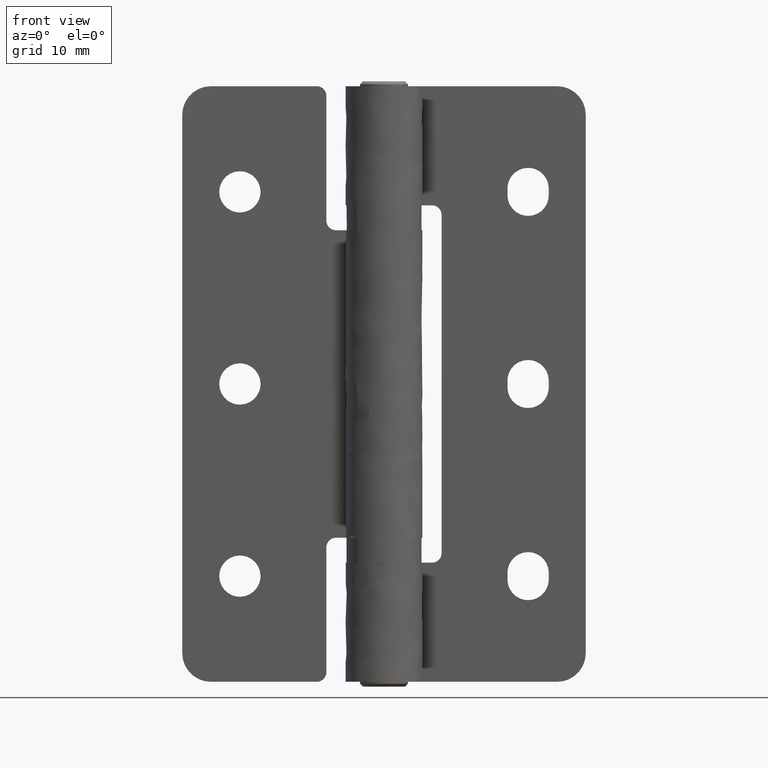
[diagram: clean part render]
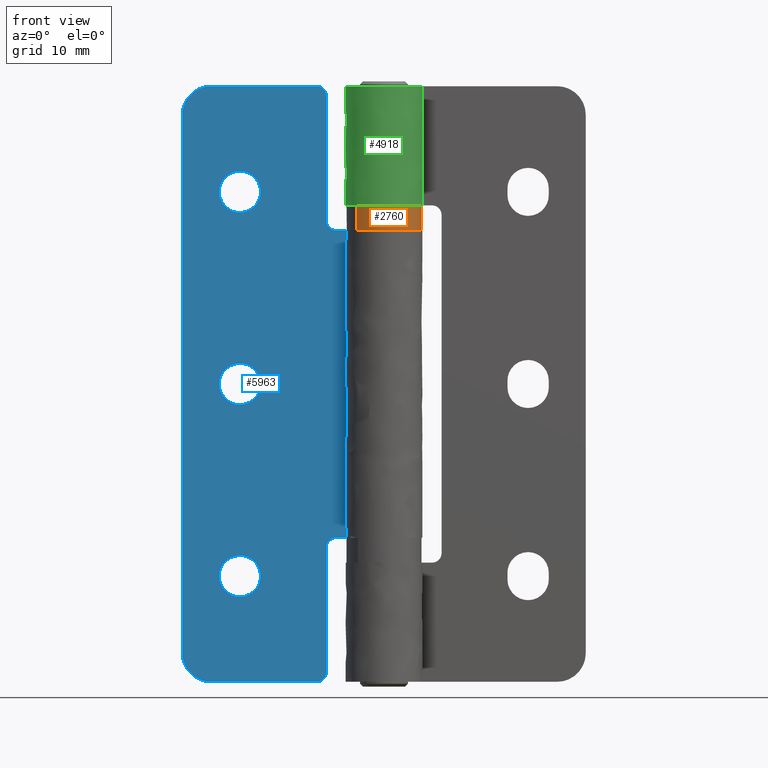
[diagram: same view with three faces highlighted in distinct colors, each labeled with its STEP entity id]
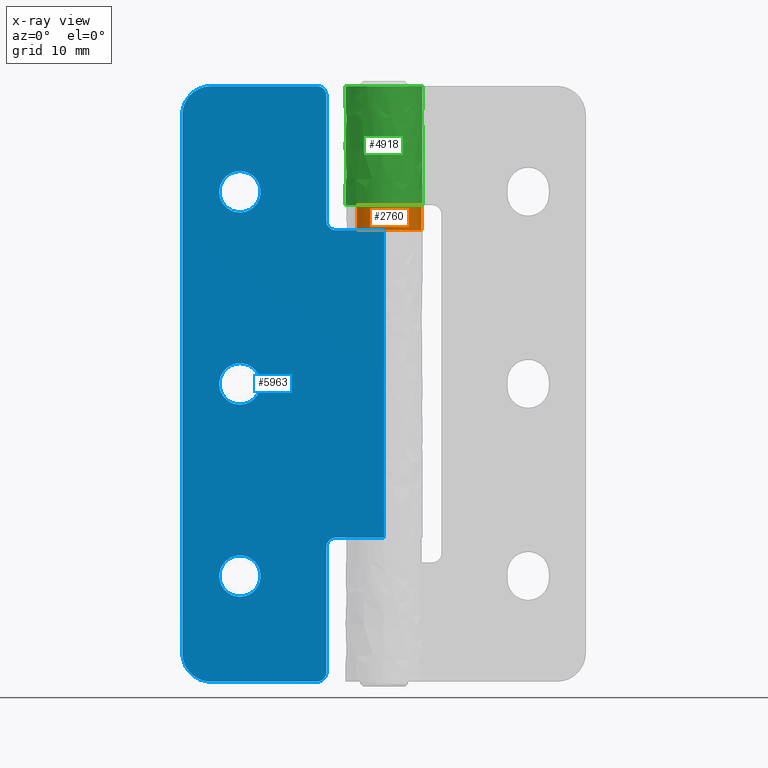
[diagram: x-ray of the same camera — body ghosted, the three highlighted faces saturated]
A machine part, front view with three faces highlighted in distinct colors.
The next image is the same camera in x-ray (body ghosted, the three faces saturated) — at least one of them is partly hidden behind the body in this view.
Their STEP definitions:

[orange] entity #2760 — the highlighted face is a freeform B-spline surface patch.
#2606=CARTESIAN_POINT('',(-2.822783572749665,-2.691076198279406,49.600000000000001));
#2607=VERTEX_POINT('',#2606);
#2617=CARTESIAN_POINT('',(0.000000922317437,-3.899999999999891,49.600000000000001));
#2618=VERTEX_POINT('',#2617);
#2619=CARTESIAN_POINT('',(-2.822783572749665,-2.691076198279406,49.600000000000001));
#2620=CARTESIAN_POINT('',(-2.528027617635878,-3.000641832290229,49.600000000000158));
#2621=CARTESIAN_POINT('',(-1.981877961203100,-3.410859152256643,49.599999999999881));
#2622=CARTESIAN_POINT('',(-1.002667200070252,-3.808434440283430,49.600000000000279));
#2623=CARTESIAN_POINT('',(-0.378101624264665,-3.900138674094396,49.600000000000001));
#2624=CARTESIAN_POINT('',(0.000000922317437,-3.899999999999891,49.600000000000001));
#2625=B_SPLINE_CURVE_WITH_KNOTS('',3,(#2619,#2620,#2621,#2622,#2623,#2624),.UNSPECIFIED.,.F.,.U.,(4,1,1,4),(0.000000021288519,1.282220543804275,2.021943365991340,3.156214729391200),.UNSPECIFIED.);
#2626=EDGE_CURVE('',#2607,#2618,#2625,.T.);
#2628=CARTESIAN_POINT('',(3.900000000000227,0.0,49.600000000000001));
#2629=VERTEX_POINT('',#2628);
#2630=CARTESIAN_POINT('',(0.000000922317437,-3.899999999999891,49.600000000000001));
#2631=CARTESIAN_POINT('',(0.414829419397993,-3.900256299974238,49.599999999999902));
#2632=CARTESIAN_POINT('',(1.004938852205711,-3.804903287229226,49.600000000000144));
#2633=CARTESIAN_POINT('',(1.789869726178876,-3.485357128299695,49.599999999999973));
#2634=CARTESIAN_POINT('',(2.294833548712168,-3.174221316555864,49.600000000000037));
#2635=CARTESIAN_POINT('',(2.766822754130544,-2.767041029386484,49.600000000000087));
#2636=CARTESIAN_POINT('',(3.187963559681291,-2.284905249159990,49.600000000000009));
#2637=CARTESIAN_POINT('',(3.555241060004578,-1.663520702287500,49.599999999999909));
#2638=CARTESIAN_POINT('',(3.831076216201784,-0.877402829397955,49.600000000000328));
#2639=CARTESIAN_POINT('',(3.900084752611212,-0.319073248142258,49.599999999999291));
#2640=CARTESIAN_POINT('',(3.900000000000227,0.0,49.600000000000001));
#2641=B_SPLINE_CURVE_WITH_KNOTS('',3,(#2630,#2631,#2632,#2633,#2634,#2635,#2636,#2637,#2638,#2639,#2640),.UNSPECIFIED.,.F.,.U.,(4,1,1,1,1,1,1,1,4),(0.000000074128069,1.244370384060238,1.770840953229247,2.536613876799416,3.015232974915307,3.637379492217823,4.451023522502679,5.168939530052215,6.126143593379990),.UNSPECIFIED.);
#2642=EDGE_CURVE('',#2618,#2629,#2641,.T.);
#2644=CARTESIAN_POINT('',(2.822783569893873,2.691076201275434,49.600000000000001));
#2645=VERTEX_POINT('',#2644);
#2646=CARTESIAN_POINT('',(3.900000000000227,0.0,49.600000000000001));
#2647=CARTESIAN_POINT('',(3.900019142518370,0.232024651732592,49.599999999999987));
#2648=CARTESIAN_POINT('',(3.854330530864289,0.742472062692377,49.600000000000023));
#2649=CARTESIAN_POINT('',(3.639631285481068,1.473913484165924,49.600000000000151));
#2650=CARTESIAN_POINT('',(3.282699157615003,2.146459023485178,49.599999999999632));
#2651=CARTESIAN_POINT('',(2.982899861808430,2.523152797378079,49.600000000000577));
#2652=CARTESIAN_POINT('',(2.822783569893873,2.691076201275434,49.600000000000001));
#2653=B_SPLINE_CURVE_WITH_KNOTS('',3,(#2646,#2647,#2648,#2649,#2650,#2651,#2652),.UNSPECIFIED.,.F.,.U.,(4,1,1,1,4),(0.000000018087805,0.696076791617354,1.531359101492440,2.273853462455018,2.969930235970900),.UNSPECIFIED.);
#2654=EDGE_CURVE('',#2629,#2645,#2653,.T.);
#2693=CARTESIAN_POINT('',(-2.822783751992231,-2.691076344046628,46.870130336548492));
#2694=CARTESIAN_POINT('',(-0.131707407945603,-5.513860096039086,46.870130336548499));
#2695=CARTESIAN_POINT('',(2.691076344046856,-2.822783751992458,46.870130336548492));
#2696=CARTESIAN_POINT('',(5.513860096039315,-0.131707407945830,46.870130336548499));
#2697=CARTESIAN_POINT('',(2.822783751992686,2.691076344046628,46.870130336548492));
#2698=CARTESIAN_POINT('',(-2.822783751992231,-2.691076344046628,49.729870332156032));
#2699=CARTESIAN_POINT('',(-0.131707407945603,-5.513860096039087,49.729870332156040));
#2700=CARTESIAN_POINT('',(2.691076344046856,-2.822783751992458,49.729870332156032));
#2701=CARTESIAN_POINT('',(5.513860096039315,-0.131707407945830,49.729870332156040));
#2702=CARTESIAN_POINT('',(2.822783751992686,2.691076344046628,49.729870332156032));
#2710=(BOUNDED_SURFACE()B_SPLINE_SURFACE(2,1,((#2693,#2698),(#2694,#2699),(#2695,#2700),(#2696,#2701),(#2697,#2702)),.UNSPECIFIED.,.F.,.F.,.U.)B_SPLINE_SURFACE_WITH_KNOTS((3,2,3),(2,2),(0.0,6.461731573020281,12.923463146040559),(0.0,2.859739995607541),.UNSPECIFIED.)GEOMETRIC_REPRESENTATION_ITEM()RATIONAL_B_SPLINE_SURFACE(((1.0,1.0),(0.707106781186548,0.707106781186548),(1.0,1.0),(0.707106781186548,0.707106781186548),(1.0,1.0)))REPRESENTATION_ITEM('')SURFACE());
#2711=ORIENTED_EDGE('',*,*,#2626,.F.);
#2712=CARTESIAN_POINT('',(-2.822783786781140,-2.691076307555071,46.999999999999957));
#2713=VERTEX_POINT('',#2712);
#2714=CARTESIAN_POINT('',(-2.822783786781140,-2.691076307555071,46.999999999999957));
#2715=CARTESIAN_POINT('',(-2.822783572749665,-2.691076198279406,49.600000000000001));
#2716=QUASI_UNIFORM_CURVE('',1,(#2714,#2715),.UNSPECIFIED.,.F.,.U.);
#2717=EDGE_CURVE('',#2713,#2607,#2716,.T.);
#2718=ORIENTED_EDGE('',*,*,#2717,.F.);
#2719=CARTESIAN_POINT('',(3.573348485771496,-1.562427790087011,47.0));
#2720=VERTEX_POINT('',#2719);
#2721=CARTESIAN_POINT('',(-2.822783786781140,-2.691076307555071,46.999999999999957));
#2722=CARTESIAN_POINT('',(-2.684886059892762,-2.835735976898761,46.999999999999922));
#2723=CARTESIAN_POINT('',(-2.356974211772554,-3.130620056658952,47.000000000000007));
#2724=CARTESIAN_POINT('',(-1.847866661538898,-3.452142180728618,47.000000000000021));
#2725=CARTESIAN_POINT('',(-1.260075541015253,-3.707316515567480,46.999999999999922));
#2726=CARTESIAN_POINT('',(-0.677519706306014,-3.859669357192984,47.000000000000078));
#2727=CARTESIAN_POINT('',(0.021432413424731,-3.920422122965374,46.999999999999957));
#2728=CARTESIAN_POINT('',(0.821634717084949,-3.848200524586216,46.999999999999829));
#2729=CARTESIAN_POINT('',(1.720758948958607,-3.549616821778799,47.000000000000028));
#2730=CARTESIAN_POINT('',(2.461574441271187,-3.061918007168962,47.000000000000171));
#2731=CARTESIAN_POINT('',(3.110869777338869,-2.407156547247479,46.999999999998963));
#2732=CARTESIAN_POINT('',(3.421336951327643,-1.910427910894823,47.000000000001108));
#2733=CARTESIAN_POINT('',(3.573348485771496,-1.562427790087011,47.0));
#2734=B_SPLINE_CURVE_WITH_KNOTS('',3,(#2721,#2722,#2723,#2724,#2725,#2726,#2727,#2728,#2729,#2730,#2731,#2732,#2733),.UNSPECIFIED.,.F.,.U.,(4,1,1,1,1,1,1,1,1,1,4),(0.000000045163654,0.599574783632801,1.319100622069020,1.798783177089870,2.518309598242414,3.117908427385689,3.897353562830936,4.916672227162008,5.935989114222141,6.535594432727558,7.674809165564764),.UNSPECIFIED.);
#2735=EDGE_CURVE('',#2713,#2720,#2734,.T.);
#2736=ORIENTED_EDGE('',*,*,#2735,.T.);
#2737=CARTESIAN_POINT('',(2.822783738450099,2.691076358252021,46.999999999999957));
#2738=VERTEX_POINT('',#2737);
#2739=CARTESIAN_POINT('',(3.573348485771496,-1.562427790087011,47.0));
#2740=CARTESIAN_POINT('',(3.721521665241489,-1.223882411402840,47.000000000000007));
#2741=CARTESIAN_POINT('',(3.881939688181641,-0.643599703756914,46.999999999999879));
#2742=CARTESIAN_POINT('',(3.912635765010906,0.109639223224618,47.000000000000220));
#2743=CARTESIAN_POINT('',(3.850792143634868,0.691501667244637,46.999999999999702));
#2744=CARTESIAN_POINT('',(3.709585977954222,1.260107193993463,47.000000000000192));
#2745=CARTESIAN_POINT('',(3.400661569120239,1.973902312596313,46.999999999999773));
#2746=CARTESIAN_POINT('',(3.061412039028000,2.440935408405486,47.000000000000078));
#2747=CARTESIAN_POINT('',(2.822783738450099,2.691076358252021,46.999999999999957));
#2748=B_SPLINE_CURVE_WITH_KNOTS('',3,(#2739,#2740,#2741,#2742,#2743,#2744,#2745,#2746,#2747),.UNSPECIFIED.,.F.,.U.,(4,1,1,1,1,1,4),(0.000000039182941,1.108611763587834,1.788093411080980,2.253006762629822,2.860924306153560,3.540405799220467,4.577493867132453),.UNSPECIFIED.);
#2749=EDGE_CURVE('',#2720,#2738,#2748,.T.);
#2750=ORIENTED_EDGE('',*,*,#2749,.T.);
#2751=CARTESIAN_POINT('',(2.822783738450099,2.691076358252021,46.999999999999957));
#2752=CARTESIAN_POINT('',(2.822783569893873,2.691076201275434,49.600000000000001));
#2753=QUASI_UNIFORM_CURVE('',1,(#2751,#2752),.UNSPECIFIED.,.F.,.U.);
#2754=EDGE_CURVE('',#2738,#2645,#2753,.T.);
#2755=ORIENTED_EDGE('',*,*,#2754,.T.);
#2756=ORIENTED_EDGE('',*,*,#2654,.F.);
#2757=ORIENTED_EDGE('',*,*,#2642,.F.);
#2758=EDGE_LOOP('',(#2711,#2718,#2736,#2750,#2755,#2756,#2757));
#2759=FACE_OUTER_BOUND('',#2758,.T.);
#2760=ADVANCED_FACE('',(#2759),#2710,.T.);

[blue] entity #5963 — the highlighted face is a freeform B-spline surface patch.
#4939=CARTESIAN_POINT('',(-15.0,2.499999999999945,48.849999999999987));
#4940=VERTEX_POINT('',#4939);
#4941=CARTESIAN_POINT('',(-13.547481286160830,2.499999999988452,49.414853928863081));
#4942=VERTEX_POINT('',#4941);
#4943=CARTESIAN_POINT('',(-15.0,2.499999999999945,48.849999999999987));
#4944=CARTESIAN_POINT('',(-14.850486805714629,2.499999999998758,48.849977644339383));
#4945=CARTESIAN_POINT('',(-14.568089796124189,2.499999999996533,48.879588198074352));
#4946=CARTESIAN_POINT('',(-14.058220285443030,2.499999999992487,49.037980742251790));
#4947=CARTESIAN_POINT('',(-13.731103408453400,2.499999999989912,49.246357040869967));
#4948=CARTESIAN_POINT('',(-13.547481286160830,2.499999999988452,49.414853928863081));
#4949=B_SPLINE_CURVE_WITH_KNOTS('',3,(#4943,#4944,#4945,#4946,#4947,#4948),.UNSPECIFIED.,.F.,.U.,(4,1,1,4),(9.605818E-009,0.448546006430990,0.847253304357501,1.594830153144858),.UNSPECIFIED.);
#4950=EDGE_CURVE('',#4940,#4942,#4949,.T.);
#4996=CARTESIAN_POINT('',(-16.452518713839169,2.499999999988452,52.585146071136919));
#4997=VERTEX_POINT('',#4996);
#5003=CARTESIAN_POINT('',(-17.149999999999650,2.499999999999945,50.999998768237262));
#5004=VERTEX_POINT('',#5003);
#5005=CARTESIAN_POINT('',(-16.452518713839169,2.499999999988452,52.585146071136919));
#5006=CARTESIAN_POINT('',(-16.623750389141861,2.499999999989606,52.428446158147352));
#5007=CARTESIAN_POINT('',(-16.833032498511258,2.499999999991486,52.162313184950953));
#5008=CARTESIAN_POINT('',(-17.083525145097720,2.499999999995471,51.621861084692227));
#5009=CARTESIAN_POINT('',(-17.150214865236549,2.499999999998035,51.259978951525717));
#5010=CARTESIAN_POINT('',(-17.149999999999650,2.499999999999945,50.999998768237262));
#5011=B_SPLINE_CURVE_WITH_KNOTS('',3,(#5005,#5006,#5007,#5008,#5009,#5010),.UNSPECIFIED.,.F.,.U.,(4,1,1,4),(0.000000025291755,0.696263867446519,1.002609168797346,1.782431098515526),.UNSPECIFIED.);
#5012=EDGE_CURVE('',#4997,#5004,#5011,.T.);
#5014=CARTESIAN_POINT('',(-17.149999999999650,2.499999999999945,50.999998768237262));
#5015=CARTESIAN_POINT('',(-17.150027913046969,2.499999999999949,50.841693864055117));
#5016=CARTESIAN_POINT('',(-17.115844540174059,2.499999999999939,50.533889801614741));
#5017=CARTESIAN_POINT('',(-16.957670248208881,2.499999999999951,50.064625994086811));
#5018=CARTESIAN_POINT('',(-16.675801566930321,2.499999999999948,49.613324367218098));
#5019=CARTESIAN_POINT('',(-16.285619123246040,2.499999999999940,49.250932638532113));
#5020=CARTESIAN_POINT('',(-15.837814064922460,2.499999999999952,49.000877694860328));
#5021=CARTESIAN_POINT('',(-15.413355098838061,2.499999999999925,48.874971010498911));
#5022=CARTESIAN_POINT('',(-15.123121976327511,2.499999999999972,48.849996056525249));
#5023=CARTESIAN_POINT('',(-15.0,2.499999999999945,48.849999999999987));
#5024=B_SPLINE_CURVE_WITH_KNOTS('',3,(#5014,#5015,#5016,#5017,#5018,#5019,#5020,#5021,#5022,#5023),.UNSPECIFIED.,.F.,.U.,(4,1,1,1,1,1,1,4),(0.000000091529195,0.474911226484093,0.923462519127632,1.477553205114260,2.057986930782610,2.506539770999559,3.007862012327670,3.377232598943023),.UNSPECIFIED.);
#5025=EDGE_CURVE('',#5004,#4940,#5024,.T.);
#5048=CARTESIAN_POINT('',(-12.850000000000350,2.499999999999945,51.000001231762731));
#5049=VERTEX_POINT('',#5048);
#5050=CARTESIAN_POINT('',(-13.547481286160830,2.499999999988452,49.414853928863081));
#5051=CARTESIAN_POINT('',(-13.389985643635590,2.499999999989499,49.559042304383503));
#5052=CARTESIAN_POINT('',(-13.159910553944560,2.499999999991563,49.843777025651939));
#5053=CARTESIAN_POINT('',(-12.912273631825730,2.499999999995503,50.387378057553811));
#5054=CARTESIAN_POINT('',(-12.849853636370611,2.499999999998265,50.767893048097449));
#5055=CARTESIAN_POINT('',(-12.850000000000350,2.499999999999945,51.000001231762731));
#5056=B_SPLINE_CURVE_WITH_KNOTS('',3,(#5050,#5051,#5052,#5053,#5054,#5055),.UNSPECIFIED.,.F.,.U.,(4,1,1,4),(0.000000025288406,0.640562864681485,1.086167256378665,1.782431098515503),.UNSPECIFIED.);
#5057=EDGE_CURVE('',#4942,#5049,#5056,.T.);
#5059=CARTESIAN_POINT('',(-15.0,2.499999999999945,53.149999999999999));
#5060=VERTEX_POINT('',#5059);
#5061=CARTESIAN_POINT('',(-12.850000000000350,2.499999999999945,51.000001231762731));
#5062=CARTESIAN_POINT('',(-12.849779095075879,2.499999999999949,51.255090653398362));
#5063=CARTESIAN_POINT('',(-12.922903164122420,2.499999999999945,51.659475656188903));
#5064=CARTESIAN_POINT('',(-13.197794370527630,2.499999999999948,52.214117680706202));
#5065=CARTESIAN_POINT('',(-13.517143109829700,2.499999999999940,52.584372735732941));
#5066=CARTESIAN_POINT('',(-13.910691510622730,2.499999999999960,52.868712078655079));
#5067=CARTESIAN_POINT('',(-14.375645451312760,2.499999999999937,53.085226156767327));
#5068=CARTESIAN_POINT('',(-14.762521782083111,2.499999999999933,53.150133986674113));
#5069=CARTESIAN_POINT('',(-15.0,2.499999999999945,53.149999999999999));
#5070=B_SPLINE_CURVE_WITH_KNOTS('',3,(#5061,#5062,#5063,#5064,#5065,#5066,#5067,#5068,#5069),.UNSPECIFIED.,.F.,.U.,(4,1,1,1,1,1,4),(0.000000091482344,0.765153917715287,1.213705210207309,1.846911803119370,2.216298141839717,2.664848629766702,3.377232598943212),.UNSPECIFIED.);
#5071=EDGE_CURVE('',#5049,#5060,#5070,.T.);
#5073=CARTESIAN_POINT('',(-15.0,2.499999999999945,53.149999999999999));
#5074=CARTESIAN_POINT('',(-15.182742313053881,2.499999999998500,53.150049599619663));
#5075=CARTESIAN_POINT('',(-15.465121277541559,2.499999999996267,53.113762388449153));
#5076=CARTESIAN_POINT('',(-15.970217727326141,2.499999999992264,52.943874044139257));
#5077=CARTESIAN_POINT('',(-16.268907841923529,2.499999999989904,52.753665869267522));
#5078=CARTESIAN_POINT('',(-16.452518713839169,2.499999999988452,52.585146071136919));
#5079=B_SPLINE_CURVE_WITH_KNOTS('',3,(#5073,#5074,#5075,#5076,#5077,#5078),.UNSPECIFIED.,.F.,.U.,(4,1,1,4),(9.604549E-009,0.548223019706257,0.847253304357237,1.594830153144864),.UNSPECIFIED.);
#5080=EDGE_CURVE('',#5060,#4997,#5079,.T.);
#5140=CARTESIAN_POINT('',(-15.0,2.499999999999945,28.850000000000001));
#5141=VERTEX_POINT('',#5140);
#5142=CARTESIAN_POINT('',(-13.547481286160830,2.499999999988452,29.414853928863081));
#5143=VERTEX_POINT('',#5142);
#5144=CARTESIAN_POINT('',(-15.0,2.499999999999945,28.850000000000001));
#5145=CARTESIAN_POINT('',(-14.850488296174969,2.499999999998761,28.849982035451291));
#5146=CARTESIAN_POINT('',(-14.534856323842220,2.499999999996266,28.883045632351429));
#5147=CARTESIAN_POINT('',(-14.027593908160361,2.499999999992248,29.053641255213360));
#5148=CARTESIAN_POINT('',(-13.706654180981680,2.499999999989713,29.268887108510921));
#5149=CARTESIAN_POINT('',(-13.547481286160830,2.499999999988452,29.414853928863081));
#5150=B_SPLINE_CURVE_WITH_KNOTS('',3,(#5144,#5145,#5146,#5147,#5148,#5149),.UNSPECIFIED.,.F.,.U.,(4,1,1,4),(9.605225E-009,0.448546006430664,0.946930116580374,1.594830153144866),.UNSPECIFIED.);
#5151=EDGE_CURVE('',#5141,#5143,#5150,.T.);
#5197=CARTESIAN_POINT('',(-16.452518713839169,2.499999999988452,32.585146071136919));
#5198=VERTEX_POINT('',#5197);
#5204=CARTESIAN_POINT('',(-17.149999999999650,2.499999999999945,30.999998768237269));
#5205=VERTEX_POINT('',#5204);
#5206=CARTESIAN_POINT('',(-16.452518713839169,2.499999999988452,32.585146071136919));
#5207=CARTESIAN_POINT('',(-16.562042699025959,2.499999999989177,32.484810391573518));
#5208=CARTESIAN_POINT('',(-16.772552446072350,2.499999999990907,32.247357196136761));
#5209=CARTESIAN_POINT('',(-17.062154052647479,2.499999999994680,31.723923856793341));
#5210=CARTESIAN_POINT('',(-17.150290202482310,2.499999999997946,31.278552110783640));
#5211=CARTESIAN_POINT('',(-17.149999999999650,2.499999999999945,30.999998768237269));
#5212=B_SPLINE_CURVE_WITH_KNOTS('',3,(#5206,#5207,#5208,#5209,#5210,#5211),.UNSPECIFIED.,.F.,.U.,(4,1,1,4),(0.000000025292164,0.445607777671051,0.946910830363823,1.782431098515505),.UNSPECIFIED.);
#5213=EDGE_CURVE('',#5198,#5205,#5212,.T.);
#5215=CARTESIAN_POINT('',(-17.149999999999650,2.499999999999945,30.999998768237269));
#5216=CARTESIAN_POINT('',(-17.150135691786229,2.499999999999946,30.762516586638441));
#5217=CARTESIAN_POINT('',(-17.089637535579101,2.499999999999942,30.402038110450849));
#5218=CARTESIAN_POINT('',(-16.874959054063059,2.499999999999954,29.917825888598539));
#5219=CARTESIAN_POINT('',(-16.643545781481599,2.499999999999912,29.593468847257590));
#5220=CARTESIAN_POINT('',(-16.349725781009500,2.500000000000012,29.313765917498170));
#5221=CARTESIAN_POINT('',(-16.020636758700942,2.499999999999810,29.090915219935649));
#5222=CARTESIAN_POINT('',(-15.562836790032041,2.500000000000043,28.901266729007919));
#5223=CARTESIAN_POINT('',(-15.202285599386050,2.499999999999931,28.849930113421099));
#5224=CARTESIAN_POINT('',(-15.0,2.499999999999945,28.850000000000001));
#5225=B_SPLINE_CURVE_WITH_KNOTS('',3,(#5215,#5216,#5217,#5218,#5219,#5220,#5221,#5222,#5223,#5224),.UNSPECIFIED.,.F.,.U.,(4,1,1,1,1,1,1,4),(0.000000091509532,0.712384060938357,1.081772858248211,1.583087493111528,1.899679483985489,2.295459832725549,2.770389111999656,3.377232598943060),.UNSPECIFIED.);
#5226=EDGE_CURVE('',#5205,#5141,#5225,.T.);
#5249=CARTESIAN_POINT('',(-12.850000000000350,2.499999999999945,31.000001231762731));
#5250=VERTEX_POINT('',#5249);
#5251=CARTESIAN_POINT('',(-13.547481286160830,2.499999999988452,29.414853928863081));
#5252=CARTESIAN_POINT('',(-13.417402005561391,2.499999999989312,29.533987952315059));
#5253=CARTESIAN_POINT('',(-13.198999273758300,2.499999999991182,29.790284299251319));
#5254=CARTESIAN_POINT('',(-12.926732886691241,2.499999999995025,30.322443831098312));
#5255=CARTESIAN_POINT('',(-12.849773611920551,2.499999999998062,30.740026117984211));
#5256=CARTESIAN_POINT('',(-12.850000000000350,2.499999999999945,31.000001231762731));
#5257=B_SPLINE_CURVE_WITH_KNOTS('',3,(#5251,#5252,#5253,#5254,#5255,#5256),.UNSPECIFIED.,.F.,.U.,(4,1,1,4),(0.000000025290581,0.529161508062459,1.002609168797767,1.782431098515520),.UNSPECIFIED.);
#5258=EDGE_CURVE('',#5143,#5250,#5257,.T.);
#5260=CARTESIAN_POINT('',(-15.0,2.499999999999945,33.149999999999999));
#5261=VERTEX_POINT('',#5260);
#5262=CARTESIAN_POINT('',(-12.850000000000350,2.499999999999945,31.000001231762731));
#5263=CARTESIAN_POINT('',(-12.849872208391011,2.499999999999945,31.237479626025749));
#5264=CARTESIAN_POINT('',(-12.910346888887130,2.499999999999951,31.597969602894910));
#5265=CARTESIAN_POINT('',(-13.135772184535510,2.499999999999945,32.106389897657259));
#5266=CARTESIAN_POINT('',(-13.442347233585020,2.499999999999940,32.519899603690270));
#5267=CARTESIAN_POINT('',(-13.862195609605010,2.499999999999964,32.847459410330508));
#5268=CARTESIAN_POINT('',(-14.384455931543281,2.499999999999922,33.086677993301237));
#5269=CARTESIAN_POINT('',(-14.762516746508201,2.499999999999939,33.150141099672148));
#5270=CARTESIAN_POINT('',(-15.0,2.499999999999945,33.149999999999999));
#5271=B_SPLINE_CURVE_WITH_KNOTS('',3,(#5262,#5263,#5264,#5265,#5266,#5267,#5268,#5269,#5270),.UNSPECIFIED.,.F.,.U.,(4,1,1,1,1,1,4),(0.000000091504843,0.712384060934077,1.081772858243674,1.662259654352601,2.242689201688703,2.664848629772012,3.377232598943048),.UNSPECIFIED.);
#5272=EDGE_CURVE('',#5250,#5261,#5271,.T.);
#5274=CARTESIAN_POINT('',(-15.0,2.499999999999945,33.149999999999999));
#5275=CARTESIAN_POINT('',(-15.182737373375010,2.499999999998501,33.150037094704089));
#5276=CARTESIAN_POINT('',(-15.564819282060199,2.499999999995476,33.101032286971261));
#5277=CARTESIAN_POINT('',(-16.060426739331700,2.499999999991549,32.894959298376122));
#5278=CARTESIAN_POINT('',(-16.342296019153370,2.499999999989332,32.686159312487469));
#5279=CARTESIAN_POINT('',(-16.452518713839169,2.499999999988452,32.585146071136919));
#5280=B_SPLINE_CURVE_WITH_KNOTS('',3,(#5274,#5275,#5276,#5277,#5278,#5279),.UNSPECIFIED.,.F.,.U.,(4,1,1,4),(9.605120E-009,0.548223019706496,1.146284156323852,1.594830153144862),.UNSPECIFIED.);
#5281=EDGE_CURVE('',#5261,#5198,#5280,.T.);
#5340=CARTESIAN_POINT('',(-15.0,2.499999999999945,8.850000000000000));
#5341=VERTEX_POINT('',#5340);
#5342=CARTESIAN_POINT('',(-13.547481286160830,2.499999999988452,9.414853928863080));
#5343=VERTEX_POINT('',#5342);
#5344=CARTESIAN_POINT('',(-15.0,2.499999999999945,8.850000000000000));
#5345=CARTESIAN_POINT('',(-14.750780328729750,2.499999999997974,8.849803749784266));
#5346=CARTESIAN_POINT('',(-14.368836488789640,2.499999999994953,8.917208196736331));
#5347=CARTESIAN_POINT('',(-13.885906670927930,2.499999999991126,9.144871944323192));
#5348=CARTESIAN_POINT('',(-13.657699873179050,2.499999999989327,9.313826337079611));
#5349=CARTESIAN_POINT('',(-13.547481286160830,2.499999999988452,9.414853928863080));
#5350=B_SPLINE_CURVE_WITH_KNOTS('',3,(#5344,#5345,#5346,#5347,#5348,#5349),.UNSPECIFIED.,.F.,.U.,(4,1,1,4),(9.604961E-009,0.747576858428304,1.146284156323866,1.594830153144866),.UNSPECIFIED.);
#5351=EDGE_CURVE('',#5341,#5343,#5350,.T.);
#5398=CARTESIAN_POINT('',(-16.452518713839169,2.499999999988452,12.585146071136920));
#5399=VERTEX_POINT('',#5398);
#5405=CARTESIAN_POINT('',(-17.149999999999650,2.499999999999945,10.999998768237260));
#5406=VERTEX_POINT('',#5405);
#5407=CARTESIAN_POINT('',(-16.452518713839169,2.499999999988452,12.585146071136920));
#5408=CARTESIAN_POINT('',(-16.582585022985910,2.499999999989318,12.466005379469861));
#5409=CARTESIAN_POINT('',(-16.831405497678499,2.499999999991430,12.174150563459460));
#5410=CARTESIAN_POINT('',(-17.087271075920530,2.499999999995366,11.631235563685641));
#5411=CARTESIAN_POINT('',(-17.150085786241320,2.499999999998400,11.213526535056291));
#5412=CARTESIAN_POINT('',(-17.149999999999650,2.499999999999945,10.999998768237260));
#5413=B_SPLINE_CURVE_WITH_KNOTS('',3,(#5407,#5408,#5409,#5410,#5411,#5412),.UNSPECIFIED.,.F.,.U.,(4,1,1,4),(0.000000025289219,0.529161508061797,1.141868259098444,1.782431098515528),.UNSPECIFIED.);
#5414=EDGE_CURVE('',#5399,#5406,#5413,.T.);
#5416=CARTESIAN_POINT('',(-17.149999999999650,2.499999999999945,10.999998768237260));
#5417=CARTESIAN_POINT('',(-17.150144020580729,2.499999999999951,10.762511663408040));
#5418=CARTESIAN_POINT('',(-17.089613830411480,2.499999999999938,10.402053127483850));
#5419=CARTESIAN_POINT('',(-16.864260766787670,2.499999999999953,9.893584688018397));
#5420=CARTESIAN_POINT('',(-16.594623858575940,2.499999999999943,9.530055796289918));
#5421=CARTESIAN_POINT('',(-16.231550344088749,2.499999999999946,9.220774659665707));
#5422=CARTESIAN_POINT('',(-15.837814673041500,2.499999999999936,9.000876619220566));
#5423=CARTESIAN_POINT('',(-15.413355990236809,2.499999999999977,8.874969919398891));
#5424=CARTESIAN_POINT('',(-15.123121805387511,2.499999999999898,8.849996264569443));
#5425=CARTESIAN_POINT('',(-15.0,2.499999999999945,8.850000000000000));
#5426=B_SPLINE_CURVE_WITH_KNOTS('',3,(#5416,#5417,#5418,#5419,#5420,#5421,#5422,#5423,#5424,#5425),.UNSPECIFIED.,.F.,.U.,(4,1,1,1,1,1,1,4),(0.000000091505806,0.712384060934452,1.081772858243871,1.662259654352712,2.057986930774173,2.506539770993851,3.007862012325243,3.377232598943131),.UNSPECIFIED.);
#5427=EDGE_CURVE('',#5406,#5341,#5426,.T.);
#5450=CARTESIAN_POINT('',(-12.850000000000350,2.499999999999945,11.000001231762729));
#5451=VERTEX_POINT('',#5450);
#5452=CARTESIAN_POINT('',(-13.547481286160830,2.499999999988452,9.414853928863080));
#5453=CARTESIAN_POINT('',(-13.376261364027981,2.499999999989584,9.571565466922325));
#5454=CARTESIAN_POINT('',(-13.149515187391900,2.499999999991679,9.859858911816815));
#5455=CARTESIAN_POINT('',(-12.909221544231221,2.499999999995641,10.405940746681541));
#5456=CARTESIAN_POINT('',(-12.849861807152090,2.499999999998259,10.767894652874840));
#5457=CARTESIAN_POINT('',(-12.850000000000350,2.499999999999945,11.000001231762729));
#5458=B_SPLINE_CURVE_WITH_KNOTS('',3,(#5452,#5453,#5454,#5455,#5456,#5457),.UNSPECIFIED.,.F.,.U.,(4,1,1,4),(0.000000025290113,0.696263867446637,1.086167256378730,1.782431098515509),.UNSPECIFIED.);
#5459=EDGE_CURVE('',#5343,#5451,#5458,.T.);
#5461=CARTESIAN_POINT('',(-15.0,2.499999999999945,13.150000000000000));
#5462=VERTEX_POINT('',#5461);
#5463=CARTESIAN_POINT('',(-12.850000000000350,2.499999999999945,11.000001231762729));
#5464=CARTESIAN_POINT('',(-12.849929531387350,2.499999999999947,11.202287214765891));
#5465=CARTESIAN_POINT('',(-12.901268077490981,2.499999999999943,11.562836928952571));
#5466=CARTESIAN_POINT('',(-13.090929028461129,2.499999999999946,12.020622596206289));
#5467=CARTESIAN_POINT('',(-13.383010720283529,2.499999999999947,12.452209986703711));
#5468=CARTESIAN_POINT('',(-13.770020202850070,2.499999999999941,12.794365374731591));
#5469=CARTESIAN_POINT('',(-14.340515931024390,2.499999999999938,13.077110068254379));
#5470=CARTESIAN_POINT('',(-14.744916006600860,2.499999999999949,13.150214220553270));
#5471=CARTESIAN_POINT('',(-15.0,2.499999999999945,13.150000000000000));
#5472=B_SPLINE_CURVE_WITH_KNOTS('',3,(#5463,#5464,#5465,#5466,#5467,#5468,#5469,#5470,#5471),.UNSPECIFIED.,.F.,.U.,(4,1,1,1,1,1,4),(0.000000091495499,0.606843578775856,1.081772858237533,1.477553205096994,2.163527479654079,2.612078772903308,3.377232598943139),.UNSPECIFIED.);
#5473=EDGE_CURVE('',#5451,#5462,#5472,.T.);
#5475=CARTESIAN_POINT('',(-15.0,2.499999999999945,13.150000000000000));
#5476=CARTESIAN_POINT('',(-15.149514314596409,2.499999999998764,13.150022237038300));
#5477=CARTESIAN_POINT('',(-15.431908756793380,2.499999999996528,13.120411731216100));
#5478=CARTESIAN_POINT('',(-15.941780888744830,2.499999999992491,12.962019330645720));
#5479=CARTESIAN_POINT('',(-16.268896206325710,2.499999999989907,12.753642972991850));
#5480=CARTESIAN_POINT('',(-16.452518713839169,2.499999999988452,12.585146071136920));
#5481=B_SPLINE_CURVE_WITH_KNOTS('',3,(#5475,#5476,#5477,#5478,#5479,#5480),.UNSPECIFIED.,.F.,.U.,(4,1,1,4),(9.604657E-009,0.448546006430335,0.847253304357187,1.594830153144871),.UNSPECIFIED.);
#5482=EDGE_CURVE('',#5462,#5399,#5481,.T.);
#5539=CARTESIAN_POINT('',(-20.999999999999648,2.500000000000000,3.0));
#5540=VERTEX_POINT('',#5539);
#5541=CARTESIAN_POINT('',(-17.999999999999648,2.500000000000000,0.0));
#5542=VERTEX_POINT('',#5541);
#5543=CARTESIAN_POINT('',(-20.999999999999648,2.500000000000000,3.0));
#5544=CARTESIAN_POINT('',(-21.000031020844581,2.500000000000006,2.779107395992029));
#5545=CARTESIAN_POINT('',(-20.946943550633598,2.499999999999998,2.300502543379922));
#5546=CARTESIAN_POINT('',(-20.709523163306400,2.500000000000002,1.649506612632330));
#5547=CARTESIAN_POINT('',(-20.369864631044329,2.499999999999994,1.134485954353760));
#5548=CARTESIAN_POINT('',(-19.971082461242052,2.500000000000003,0.715615470285555));
#5549=CARTESIAN_POINT('',(-19.520800086582199,2.500000000000000,0.390140591954448));
#5550=CARTESIAN_POINT('',(-18.846635022318381,2.500000000000000,0.086287530491514));
#5551=CARTESIAN_POINT('',(-18.331368659595469,2.500000000000003,-0.000191107711006));
#5552=CARTESIAN_POINT('',(-17.999999999999648,2.500000000000000,0.0));
#5553=B_SPLINE_CURVE_WITH_KNOTS('',3,(#5543,#5544,#5545,#5546,#5547,#5548,#5549,#5550,#5551,#5552),.UNSPECIFIED.,.F.,.U.,(4,1,1,1,1,1,1,4),(0.000000086809814,0.662682928038129,1.435820750684319,2.061686372664590,2.503446789226275,3.166146622104315,3.718397627398848,4.712418548631468),.UNSPECIFIED.);
#5554=EDGE_CURVE('',#5540,#5542,#5553,.T.);
#5600=CARTESIAN_POINT('',(-17.999999999999648,2.500000000000000,62.0));
#5601=VERTEX_POINT('',#5600);
#5602=CARTESIAN_POINT('',(-20.999999999999648,2.500000000000000,59.0));
#5603=VERTEX_POINT('',#5602);
#5604=CARTESIAN_POINT('',(-17.999999999999648,2.500000000000000,62.0));
#5605=CARTESIAN_POINT('',(-18.331365856251530,2.500000000000003,62.000184253605617));
#5606=CARTESIAN_POINT('',(-18.834374539576121,2.499999999999996,61.915793784841917));
#5607=CARTESIAN_POINT('',(-19.442420593467091,2.500000000000003,61.646139412990841));
#5608=CARTESIAN_POINT('',(-19.925514374917899,2.500000000000010,61.327685573062681));
#5609=CARTESIAN_POINT('',(-20.415175538272539,2.499999999999995,60.838120476172243));
#5610=CARTESIAN_POINT('',(-20.767164529346189,2.500000000000001,60.225568585600037));
#5611=CARTESIAN_POINT('',(-20.960138214276810,2.500000000000016,59.589025264736073));
#5612=CARTESIAN_POINT('',(-21.000033662010051,2.499999999999964,59.208619141978410));
#5613=CARTESIAN_POINT('',(-20.999999999999648,2.500000000000000,59.0));
#5614=B_SPLINE_CURVE_WITH_KNOTS('',3,(#5604,#5605,#5606,#5607,#5608,#5609,#5610,#5611,#5612,#5613),.UNSPECIFIED.,.F.,.U.,(4,1,1,1,1,1,1,4),(0.000000086822380,0.994021147833943,1.509449746184613,1.988064395463379,2.724354663881869,3.571130221463504,4.086564639314726,4.712418548631422),.UNSPECIFIED.);
#5615=EDGE_CURVE('',#5601,#5603,#5614,.T.);
#5661=CARTESIAN_POINT('',(-7.0,2.500000000000000,0.0));
#5662=VERTEX_POINT('',#5661);
#5663=CARTESIAN_POINT('',(-6.0,2.500000000000000,1.0));
#5664=VERTEX_POINT('',#5663);
#5665=CARTESIAN_POINT('',(-7.0,2.500000000000000,0.0));
#5666=CARTESIAN_POINT('',(-6.901824494358617,2.499999999999993,-0.000040184750275));
#5667=CARTESIAN_POINT('',(-6.730046419371180,2.499999999999977,0.025517439721287));
#5668=CARTESIAN_POINT('',(-6.465220535214562,2.499999999999960,0.138967149916905));
#5669=CARTESIAN_POINT('',(-6.234160381557844,2.499999999999967,0.328571470944598));
#5670=CARTESIAN_POINT('',(-6.047275776356711,2.499999999999961,0.631923713510092));
#5671=CARTESIAN_POINT('',(-5.999860030529296,2.499999999999999,0.869083056906110));
#5672=CARTESIAN_POINT('',(-6.0,2.500000000000000,1.0));
#5673=B_SPLINE_CURVE_WITH_KNOTS('',3,(#5665,#5666,#5667,#5668,#5669,#5670,#5671,#5672),.UNSPECIFIED.,.F.,.U.,(4,1,1,1,1,4),(0.000000143572197,0.294524780364766,0.515431500318636,0.859036535380076,1.178126844875308,1.570835744349424),.UNSPECIFIED.);
#5674=EDGE_CURVE('',#5662,#5664,#5673,.T.);
#5718=CARTESIAN_POINT('',(-6.0,2.500000000000000,61.0));
#5719=VERTEX_POINT('',#5718);
#5720=CARTESIAN_POINT('',(-7.0,2.500000000000000,62.0));
#5721=VERTEX_POINT('',#5720);
#5722=CARTESIAN_POINT('',(-6.0,2.500000000000000,61.0));
#5723=CARTESIAN_POINT('',(-5.999849463384507,2.499999999999997,61.130926786101952));
#5724=CARTESIAN_POINT('',(-6.040768974289210,2.500000000000002,61.335338119503291));
#5725=CARTESIAN_POINT('',(-6.179706990837162,2.499999999999998,61.587720087953173));
#5726=CARTESIAN_POINT('',(-6.345762128592996,2.500000000000004,61.770955099820164));
#5727=CARTESIAN_POINT('',(-6.615643441099626,2.500000000000000,61.946614793531339));
#5728=CARTESIAN_POINT('',(-6.852695402753766,2.499999999999995,62.000210448473062));
#5729=CARTESIAN_POINT('',(-7.0,2.500000000000000,62.0));
#5730=B_SPLINE_CURVE_WITH_KNOTS('',3,(#5722,#5723,#5724,#5725,#5726,#5727,#5728,#5729),.UNSPECIFIED.,.F.,.U.,(4,1,1,1,1,4),(0.000000143568564,0.392709295091793,0.613614123995001,0.859036535378670,1.129037297360360,1.570835744349415),.UNSPECIFIED.);
#5731=EDGE_CURVE('',#5719,#5721,#5730,.T.);
#5774=CARTESIAN_POINT('',(-6.0,2.500000000000000,48.0));
#5775=VERTEX_POINT('',#5774);
#5776=CARTESIAN_POINT('',(-6.0,2.500000000000000,48.0));
#5777=CARTESIAN_POINT('',(-6.0,2.500000000000000,61.0));
#5778=QUASI_UNIFORM_CURVE('',1,(#5776,#5777),.UNSPECIFIED.,.F.,.U.);
#5779=EDGE_CURVE('',#5775,#5719,#5778,.T.);
#5794=CARTESIAN_POINT('',(-6.0,2.500000000000000,14.0));
#5795=VERTEX_POINT('',#5794);
#5796=CARTESIAN_POINT('',(-6.0,2.500000000000000,14.0));
#5797=CARTESIAN_POINT('',(-6.0,2.500000000000000,1.0));
#5798=QUASI_UNIFORM_CURVE('',1,(#5796,#5797),.UNSPECIFIED.,.F.,.U.);
#5799=EDGE_CURVE('',#5795,#5664,#5798,.T.);
#5822=CARTESIAN_POINT('',(-7.0,2.500000000000000,0.0));
#5823=CARTESIAN_POINT('',(-17.999999999999648,2.500000000000000,0.0));
#5824=QUASI_UNIFORM_CURVE('',1,(#5822,#5823),.UNSPECIFIED.,.F.,.U.);
#5825=EDGE_CURVE('',#5662,#5542,#5824,.T.);
#5842=CARTESIAN_POINT('',(-20.999999999999648,2.500000000000000,59.0));
#5843=CARTESIAN_POINT('',(-20.999999999999648,2.500000000000000,3.0));
#5844=QUASI_UNIFORM_CURVE('',1,(#5842,#5843),.UNSPECIFIED.,.F.,.U.);
#5845=EDGE_CURVE('',#5603,#5540,#5844,.T.);
#5868=CARTESIAN_POINT('',(-7.0,2.500000000000000,62.0));
#5869=CARTESIAN_POINT('',(-17.999999999999648,2.500000000000000,62.0));
#5870=QUASI_UNIFORM_CURVE('',1,(#5868,#5869),.UNSPECIFIED.,.F.,.U.);
#5871=EDGE_CURVE('',#5721,#5601,#5870,.T.);
#5877=CARTESIAN_POINT('',(-22.048949959297580,2.500000000000000,65.096899879831980));
#5878=CARTESIAN_POINT('',(-22.048949959297580,2.500000000000000,-3.096901542801554));
#5879=CARTESIAN_POINT('',(1.048950522562158,2.500000000000000,65.096899879831980));
#5880=CARTESIAN_POINT('',(1.048950522562158,2.500000000000000,-3.096901542801554));
#5881=B_SPLINE_SURFACE_WITH_KNOTS('',1,1,((#5877,#5879),(#5878,#5880)),.UNSPECIFIED.,.F.,.F.,.U.,(2,2),(2,2),(0.0,68.193801422633541),(0.0,23.097900481859739),.UNSPECIFIED.);
#5882=ORIENTED_EDGE('',*,*,#5871,.T.);
#5883=ORIENTED_EDGE('',*,*,#5615,.T.);
#5884=ORIENTED_EDGE('',*,*,#5845,.T.);
#5885=ORIENTED_EDGE('',*,*,#5554,.T.);
#5886=ORIENTED_EDGE('',*,*,#5825,.F.);
#5887=ORIENTED_EDGE('',*,*,#5674,.T.);
#5888=ORIENTED_EDGE('',*,*,#5799,.F.);
#5889=CARTESIAN_POINT('',(-5.0,2.500000000000000,15.0));
#5890=VERTEX_POINT('',#5889);
#5891=CARTESIAN_POINT('',(-6.0,2.500000000000000,14.0));
#5892=CARTESIAN_POINT('',(-6.000040555084221,2.499999999999988,14.098176136978310));
#5893=CARTESIAN_POINT('',(-5.974490624548464,2.499999999999986,14.269959651110490));
#5894=CARTESIAN_POINT('',(-5.873952552095235,2.499999999999957,14.504494492054491));
#5895=CARTESIAN_POINT('',(-5.731556490461548,2.499999999999970,14.696505818711220));
#5896=CARTESIAN_POINT('',(-5.540396755236376,2.499999999999960,14.853385565204530));
#5897=CARTESIAN_POINT('',(-5.294492086746455,2.499999999999965,14.969678801535490));
#5898=CARTESIAN_POINT('',(-5.106362701188674,2.499999999999995,15.000065243160639));
#5899=CARTESIAN_POINT('',(-5.0,2.500000000000000,15.0));
#5900=B_SPLINE_CURVE_WITH_KNOTS('',3,(#5891,#5892,#5893,#5894,#5895,#5896,#5897,#5898,#5899),.UNSPECIFIED.,.F.,.U.,(4,1,1,1,1,1,4),(0.000000143571379,0.294524780364084,0.515431500318047,0.760893882567377,1.006303823859809,1.251764771004646,1.570835744349432),.UNSPECIFIED.);
#5901=EDGE_CURVE('',#5795,#5890,#5900,.T.);
#5902=ORIENTED_EDGE('',*,*,#5901,.T.);
#5903=CARTESIAN_POINT('',(3.412136E-013,2.500000000000000,15.0));
#5904=VERTEX_POINT('',#5903);
#5905=CARTESIAN_POINT('',(3.412136E-013,2.500000000000000,15.0));
#5906=CARTESIAN_POINT('',(-5.0,2.500000000000000,15.0));
#5907=QUASI_UNIFORM_CURVE('',1,(#5905,#5906),.UNSPECIFIED.,.F.,.U.);
#5908=EDGE_CURVE('',#5904,#5890,#5907,.T.);
#5909=ORIENTED_EDGE('',*,*,#5908,.F.);
#5910=CARTESIAN_POINT('',(3.412136E-013,2.500000000000000,47.0));
#5911=VERTEX_POINT('',#5910);
#5912=CARTESIAN_POINT('',(3.412136E-013,2.500000000000000,47.0));
#5913=CARTESIAN_POINT('',(3.412136E-013,2.500000000000000,15.0));
#5914=QUASI_UNIFORM_CURVE('',1,(#5912,#5913),.UNSPECIFIED.,.F.,.U.);
#5915=EDGE_CURVE('',#5911,#5904,#5914,.T.);
#5916=ORIENTED_EDGE('',*,*,#5915,.F.);
#5917=CARTESIAN_POINT('',(-5.0,2.500000000000000,47.0));
#5918=VERTEX_POINT('',#5917);
#5919=CARTESIAN_POINT('',(3.412136E-013,2.500000000000000,47.0));
#5920=CARTESIAN_POINT('',(-5.0,2.500000000000000,47.0));
#5921=QUASI_UNIFORM_CURVE('',1,(#5919,#5920),.UNSPECIFIED.,.F.,.U.);
#5922=EDGE_CURVE('',#5911,#5918,#5921,.T.);
#5923=ORIENTED_EDGE('',*,*,#5922,.T.);
#5924=CARTESIAN_POINT('',(-5.0,2.500000000000000,47.0));
#5925=CARTESIAN_POINT('',(-5.098177360853490,2.499999999999989,46.999955978283808));
#5926=CARTESIAN_POINT('',(-5.286323191513366,2.499999999999962,47.027938431346797));
#5927=CARTESIAN_POINT('',(-5.549057496265360,2.499999999999950,47.148231535238118));
#5928=CARTESIAN_POINT('',(-5.755690225137632,2.499999999999941,47.326520296276072));
#5929=CARTESIAN_POINT('',(-5.943507523139348,2.499999999999947,47.607515351391008));
#5930=CARTESIAN_POINT('',(-6.000295765916316,2.499999999999987,47.844491497212402));
#5931=CARTESIAN_POINT('',(-6.0,2.500000000000000,48.0));
#5932=B_SPLINE_CURVE_WITH_KNOTS('',3,(#5924,#5925,#5926,#5927,#5928,#5929,#5930,#5931),.UNSPECIFIED.,.F.,.U.,(4,1,1,1,1,4),(0.000000143571357,0.294524780364322,0.564531993487951,0.859036535380054,1.104488918745649,1.570835744349421),.UNSPECIFIED.);
#5933=EDGE_CURVE('',#5918,#5775,#5932,.T.);
#5934=ORIENTED_EDGE('',*,*,#5933,.T.);
#5935=ORIENTED_EDGE('',*,*,#5779,.T.);
#5936=ORIENTED_EDGE('',*,*,#5731,.T.);
#5937=EDGE_LOOP('',(#5882,#5883,#5884,#5885,#5886,#5887,#5888,#5902,#5909,#5916,#5923,#5934,#5935,#5936));
#5938=FACE_OUTER_BOUND('',#5937,.T.);
#5939=ORIENTED_EDGE('',*,*,#5272,.F.);
#5940=ORIENTED_EDGE('',*,*,#5258,.F.);
#5941=ORIENTED_EDGE('',*,*,#5151,.F.);
#5942=ORIENTED_EDGE('',*,*,#5226,.F.);
#5943=ORIENTED_EDGE('',*,*,#5213,.F.);
#5944=ORIENTED_EDGE('',*,*,#5281,.F.);
#5945=EDGE_LOOP('',(#5939,#5940,#5941,#5942,#5943,#5944));
#5946=FACE_BOUND('',#5945,.T.);
#5947=ORIENTED_EDGE('',*,*,#5473,.F.);
#5948=ORIENTED_EDGE('',*,*,#5459,.F.);
#5949=ORIENTED_EDGE('',*,*,#5351,.F.);
#5950=ORIENTED_EDGE('',*,*,#5427,.F.);
#5951=ORIENTED_EDGE('',*,*,#5414,.F.);
#5952=ORIENTED_EDGE('',*,*,#5482,.F.);
#5953=EDGE_LOOP('',(#5947,#5948,#5949,#5950,#5951,#5952));
#5954=FACE_BOUND('',#5953,.T.);
#5955=ORIENTED_EDGE('',*,*,#5071,.F.);
#5956=ORIENTED_EDGE('',*,*,#5057,.F.);
#5957=ORIENTED_EDGE('',*,*,#4950,.F.);
#5958=ORIENTED_EDGE('',*,*,#5025,.F.);
#5959=ORIENTED_EDGE('',*,*,#5012,.F.);
#5960=ORIENTED_EDGE('',*,*,#5080,.F.);
#5961=EDGE_LOOP('',(#5955,#5956,#5957,#5958,#5959,#5960));
#5962=FACE_BOUND('',#5961,.T.);
#5963=ADVANCED_FACE('',(#5938,#5946,#5954,#5962),#5881,.T.);

[green] entity #4918 — the highlighted face is a freeform B-spline surface patch.
#3209=CARTESIAN_POINT('',(3.854101966250385,1.070466269319364,49.600000000000001));
#3210=VERTEX_POINT('',#3209);
#3211=CARTESIAN_POINT('',(3.464101615138440,2.000000000000195,50.600000000000001));
#3212=VERTEX_POINT('',#3211);
#3213=CARTESIAN_POINT('',(3.854101966250385,1.070466269319364,49.600000000000001));
#3214=CARTESIAN_POINT('',(3.762611427163479,1.398384991139481,49.929731213016098));
#3215=CARTESIAN_POINT('',(3.631914786854369,1.709911706768038,50.264869582861991));
#3216=CARTESIAN_POINT('',(3.464101615138440,2.000000000000195,50.600000000000001));
#3217=B_SPLINE_CURVE_WITH_KNOTS('',3,(#3213,#3214,#3215,#3216),.UNSPECIFIED.,.F.,.U.,(4,4),(4.179541E-010,1.421836893372720),.UNSPECIFIED.);
#3218=EDGE_CURVE('',#3210,#3212,#3217,.T.);
#3289=CARTESIAN_POINT('',(3.464101615138440,2.000000000000195,61.0));
#3290=VERTEX_POINT('',#3289);
#3291=CARTESIAN_POINT('',(3.854101966250330,1.070466269319572,62.0));
#3292=VERTEX_POINT('',#3291);
#3293=CARTESIAN_POINT('',(3.464101615138440,2.000000000000195,61.0));
#3294=CARTESIAN_POINT('',(3.631905951582635,1.709907708710556,61.335129461921213));
#3295=CARTESIAN_POINT('',(3.762620204842098,1.398388535530764,61.670270106290410));
#3296=CARTESIAN_POINT('',(3.854101966250330,1.070466269319572,62.0));
#3297=B_SPLINE_CURVE_WITH_KNOTS('',3,(#3293,#3294,#3295,#3296),.UNSPECIFIED.,.F.,.U.,(4,4),(4.173639E-010,1.421836893372567),.UNSPECIFIED.);
#3298=EDGE_CURVE('',#3290,#3292,#3297,.T.);
#3709=CARTESIAN_POINT('',(-2.420551077625984,-3.184483079026776,49.600000000000009));
#3710=VERTEX_POINT('',#3709);
#3711=CARTESIAN_POINT('',(-2.420551077625984,-3.184483079026776,49.600000000000009));
#3712=CARTESIAN_POINT('',(-2.121016863510251,-3.412332615553494,49.599999999999952));
#3713=CARTESIAN_POINT('',(-1.525686577911409,-3.744163968188166,49.600000000000080));
#3714=CARTESIAN_POINT('',(-0.653926170347312,-3.972066632327918,49.600000000000023));
#3715=CARTESIAN_POINT('',(0.073957279166643,-4.016554052695077,49.600000000000037));
#3716=CARTESIAN_POINT('',(0.682722666152572,-3.955770654286753,49.600000000000009));
#3717=CARTESIAN_POINT('',(1.364079953598302,-3.785082821543594,49.599999999999817));
#3718=CARTESIAN_POINT('',(2.159715436936810,-3.419921887625237,49.600000000000520));
#3719=CARTESIAN_POINT('',(2.929014674987790,-2.787097933117027,49.599999999999859));
#3720=CARTESIAN_POINT('',(3.451639147659166,-2.069168632680877,49.600000000000051));
#3721=CARTESIAN_POINT('',(3.767382261142708,-1.397738877928928,49.599999999999653));
#3722=CARTESIAN_POINT('',(3.954308499580050,-0.733070494264005,49.600000000001323));
#3723=CARTESIAN_POINT('',(4.033892826791369,0.110329987880007,49.599999999996953));
#3724=CARTESIAN_POINT('',(3.951474497772075,0.720382926351186,49.600000000003909));
#3725=CARTESIAN_POINT('',(3.854101966250385,1.070466269319364,49.600000000000001));
#3726=B_SPLINE_CURVE_WITH_KNOTS('',3,(#3711,#3712,#3713,#3714,#3715,#3716,#3717,#3718,#3719,#3720,#3721,#3722,#3723,#3724,#3725),.UNSPECIFIED.,.F.,.U.,(4,1,1,1,1,1,1,1,1,1,1,1,4),(0.000000159087257,1.129013839911412,2.024474929419622,2.686329491390904,3.309255736983101,3.854314727344298,4.788677291900348,5.917686239361619,6.813137781330083,7.436058301386730,8.136843827848363,8.876577650822878,9.966654355169856),.UNSPECIFIED.);
#3727=EDGE_CURVE('',#3710,#3210,#3726,.T.);
#3729=CARTESIAN_POINT('',(1.136244E-013,4.0,49.600000000000001));
#3730=VERTEX_POINT('',#3729);
#3731=CARTESIAN_POINT('',(1.136244E-013,4.0,49.600000000000001));
#3732=CARTESIAN_POINT('',(-0.324438047311086,4.000075934543082,49.600000000000193));
#3733=CARTESIAN_POINT('',(-0.882424131561290,3.931722897759300,49.599999999999703));
#3734=CARTESIAN_POINT('',(-1.670942442616087,3.660831616175157,49.600000000000229));
#3735=CARTESIAN_POINT('',(-2.293325865651589,3.303866019415037,49.599999999999959));
#3736=CARTESIAN_POINT('',(-2.870391147669504,2.817044846020194,49.600000000000001));
#3737=CARTESIAN_POINT('',(-3.410193393331144,2.163105084891947,49.599999999999781));
#3738=CARTESIAN_POINT('',(-3.770228905062133,1.420637826830945,49.600000000000762));
#3739=CARTESIAN_POINT('',(-3.967398381698533,0.638630750367553,49.599999999999334));
#3740=CARTESIAN_POINT('',(-4.020594515546433,-0.011143084035945,49.600000000001252));
#3741=CARTESIAN_POINT('',(-3.958552999406783,-0.672099830207608,49.599999999997863));
#3742=CARTESIAN_POINT('',(-3.797985971454256,-1.316006900925700,49.600000000000691));
#3743=CARTESIAN_POINT('',(-3.530029900516395,-1.924624708718326,49.599999999999838));
#3744=CARTESIAN_POINT('',(-3.081047699918872,-2.595252521187703,49.600000000000122));
#3745=CARTESIAN_POINT('',(-2.689237150937650,-2.980380954101875,49.600000000000023));
#3746=CARTESIAN_POINT('',(-2.420551077625984,-3.184483079026776,49.600000000000009));
#3747=B_SPLINE_CURVE_WITH_KNOTS('',3,(#3731,#3732,#3733,#3734,#3735,#3736,#3737,#3738,#3739,#3740,#3741,#3742,#3743,#3744,#3745,#3746),.UNSPECIFIED.,.F.,.U.,(4,1,1,1,1,1,1,1,1,1,1,1,1,4),(0.000000159103362,0.973299527090832,1.674081051756479,2.491664665363435,3.114587739915882,3.932171976108609,5.022220562005867,5.567302564095225,6.345934868387278,6.968862903884432,7.552856688377336,8.331514685058620,8.954439048693411,9.966654325053643),.UNSPECIFIED.);
#3748=EDGE_CURVE('',#3730,#3710,#3747,.T.);
#4548=CARTESIAN_POINT('',(4.936607E-013,4.000000000000370,62.0));
#4549=VERTEX_POINT('',#4548);
#4550=CARTESIAN_POINT('',(-2.420551077626092,-3.184483079026694,62.0));
#4551=VERTEX_POINT('',#4550);
#4552=CARTESIAN_POINT('',(4.936607E-013,4.000000000000370,62.0));
#4553=CARTESIAN_POINT('',(-0.376349465903034,4.000148642646726,62.000000000000192));
#4554=CARTESIAN_POINT('',(-1.051097122675481,3.904039377282240,61.999999999999730));
#4555=CARTESIAN_POINT('',(-1.870983036021710,3.562978399874444,62.000000000000192));
#4556=CARTESIAN_POINT('',(-2.555152608813394,3.110815219353242,61.999999999999829));
#4557=CARTESIAN_POINT('',(-3.169115100253145,2.505238772174165,62.000000000000107));
#4558=CARTESIAN_POINT('',(-3.646781863879996,1.723969083202215,62.000000000000213));
#4559=CARTESIAN_POINT('',(-3.896501027544300,0.982569784239166,62.000000000000107));
#4560=CARTESIAN_POINT('',(-4.014285020932722,0.250555443932615,61.999999999999872));
#4561=CARTESIAN_POINT('',(-3.998754776009231,-0.506694709304179,62.000000000000547));
#4562=CARTESIAN_POINT('',(-3.810633447440004,-1.293335662748979,62.000000000000178));
#4563=CARTESIAN_POINT('',(-3.478002628195500,-2.029371771364215,61.999999999999673));
#4564=CARTESIAN_POINT('',(-3.020205396342953,-2.665237407996027,62.000000000000227));
#4565=CARTESIAN_POINT('',(-2.616851707307737,-3.035292174739457,61.999999999999993));
#4566=CARTESIAN_POINT('',(-2.420551077626092,-3.184483079026694,62.0));
#4567=B_SPLINE_CURVE_WITH_KNOTS('',3,(#4552,#4553,#4554,#4555,#4556,#4557,#4558,#4559,#4560,#4561,#4562,#4563,#4564,#4565,#4566),.UNSPECIFIED.,.F.,.U.,(4,1,1,1,1,1,1,1,1,1,1,1,4),(0.000000159103585,1.129013836514737,2.024474923315585,2.647394436346899,3.581785896946247,4.594019665649761,5.372649188406495,5.917686221487802,6.813137760748835,7.630722226993091,8.331514685059183,9.226966837780564,9.966654325054217),.UNSPECIFIED.);
#4568=EDGE_CURVE('',#4549,#4551,#4567,.T.);
#4570=CARTESIAN_POINT('',(-2.420551077626092,-3.184483079026694,62.0));
#4571=CARTESIAN_POINT('',(-2.265589275817154,-3.302272468294007,61.999999999999972));
#4572=CARTESIAN_POINT('',(-1.851188757710094,-3.572012740293411,61.999999999999957));
#4573=CARTESIAN_POINT('',(-1.175385985389328,-3.851425766845114,62.000000000000078));
#4574=CARTESIAN_POINT('',(-0.484875776565555,-3.985931471865206,61.999999999999957));
#4575=CARTESIAN_POINT('',(0.268689358715487,-4.017416590376904,62.000000000000099));
#4576=CARTESIAN_POINT('',(1.018999182420311,-3.901667822579691,61.999999999999950));
#4577=CARTESIAN_POINT('',(1.844248238592006,-3.579595909574382,62.000000000000341));
#4578=CARTESIAN_POINT('',(2.459304280264337,-3.184034965802966,61.999999999999318));
#4579=CARTESIAN_POINT('',(2.951342119430347,-2.719587391416822,62.000000000000043));
#4580=CARTESIAN_POINT('',(3.332508518342308,-2.241603314605546,61.999999999999581));
#4581=CARTESIAN_POINT('',(3.719301677366051,-1.562333796064461,62.000000000002608));
#4582=CARTESIAN_POINT('',(3.942912170672274,-0.822628173746844,61.999999999998593));
#4583=CARTESIAN_POINT('',(4.030806887822794,0.109514325706004,62.000000000000512));
#4584=CARTESIAN_POINT('',(3.961971752045892,0.682870522675592,62.000000000000348));
#4585=CARTESIAN_POINT('',(3.854101966250330,1.070466269319572,62.0));
#4586=B_SPLINE_CURVE_WITH_KNOTS('',3,(#4570,#4571,#4572,#4573,#4574,#4575,#4576,#4577,#4578,#4579,#4580,#4581,#4582,#4583,#4584,#4585),.UNSPECIFIED.,.F.,.U.,(4,1,1,1,1,1,1,1,1,1,1,1,1,4),(0.000000159099127,0.583947650511696,1.479408886730170,2.180202107639649,2.686329491399703,3.737501744226593,4.438309630687122,5.333681427980642,5.917686239366724,6.462746447029180,7.163530877683119,8.253650775019812,8.759766533830868,9.966654355170132),.UNSPECIFIED.);
#4587=EDGE_CURVE('',#4551,#3292,#4586,.T.);
#4801=CARTESIAN_POINT('',(4.936607E-013,4.000000000000370,62.0));
#4802=CARTESIAN_POINT('',(1.136244E-013,4.0,49.600000000000001));
#4803=QUASI_UNIFORM_CURVE('',1,(#4801,#4802),.UNSPECIFIED.,.F.,.U.);
#4804=EDGE_CURVE('',#4549,#3730,#4803,.T.);
#4877=CARTESIAN_POINT('',(3.464101615138440,2.000000000000195,61.0));
#4878=CARTESIAN_POINT('',(3.464101615138440,2.000000000000195,50.600000000000001));
#4879=QUASI_UNIFORM_CURVE('',1,(#4877,#4878),.UNSPECIFIED.,.F.,.U.);
#4880=EDGE_CURVE('',#3290,#3212,#4879,.T.);
#4886=CARTESIAN_POINT('',(0.174477549461600,3.996192886328015,62.310000000000002));
#4887=CARTESIAN_POINT('',(0.174477549461600,3.996192886328015,49.282250000000012));
#4888=CARTESIAN_POINT('',(-4.789866990423275,4.212940849862258,62.310000000000009));
#4889=CARTESIAN_POINT('',(-4.789866990423275,4.212940849862258,49.282250000000005));
#4890=CARTESIAN_POINT('',(-3.941234831416525,-0.683131029622414,62.310000000000002));
#4891=CARTESIAN_POINT('',(-3.941234831416525,-0.683131029622414,49.282250000000012));
#4892=CARTESIAN_POINT('',(-3.092602672409774,-5.579202909107084,62.310000000000009));
#4893=CARTESIAN_POINT('',(-3.092602672409774,-5.579202909107084,49.282250000000005));
#4894=CARTESIAN_POINT('',(1.509208292937817,-3.704360987880741,62.310000000000002));
#4895=CARTESIAN_POINT('',(1.509208292937817,-3.704360987880741,49.282250000000012));
#4896=CARTESIAN_POINT('',(6.111019258285409,-1.829519066654397,62.310000000000009));
#4897=CARTESIAN_POINT('',(6.111019258285409,-1.829519066654397,49.282250000000005));
#4898=CARTESIAN_POINT('',(3.296504754488726,2.265624947699572,62.310000000000002));
#4899=CARTESIAN_POINT('',(3.296504754488726,2.265624947699572,49.282250000000012));
#4907=(BOUNDED_SURFACE()B_SPLINE_SURFACE(1,2,((#4886,#4888,#4890,#4892,#4894,#4896,#4898),(#4887,#4889,#4891,#4893,#4895,#4897,#4899)),.UNSPECIFIED.,.F.,.F.,.U.)B_SPLINE_SURFACE_WITH_KNOTS((2,2),(3,2,2,3),(0.0,13.027750000000010),(0.0,7.660193727598784,15.320387455197571,22.980581182796350),.UNSPECIFIED.)GEOMETRIC_REPRESENTATION_ITEM()RATIONAL_B_SPLINE_SURFACE(((1.0,0.627057105746662,1.0,0.627057105746662,1.0,0.627057105746662,1.0),(1.0,0.627057105746662,1.0,0.627057105746662,1.0,0.627057105746662,1.0)))REPRESENTATION_ITEM('')SURFACE());
#4908=ORIENTED_EDGE('',*,*,#4880,.F.);
#4909=ORIENTED_EDGE('',*,*,#3298,.T.);
#4910=ORIENTED_EDGE('',*,*,#4587,.F.);
#4911=ORIENTED_EDGE('',*,*,#4568,.F.);
#4912=ORIENTED_EDGE('',*,*,#4804,.T.);
#4913=ORIENTED_EDGE('',*,*,#3748,.T.);
#4914=ORIENTED_EDGE('',*,*,#3727,.T.);
#4915=ORIENTED_EDGE('',*,*,#3218,.T.);
#4916=EDGE_LOOP('',(#4908,#4909,#4910,#4911,#4912,#4913,#4914,#4915));
#4917=FACE_OUTER_BOUND('',#4916,.T.);
#4918=ADVANCED_FACE('',(#4917),#4907,.T.);